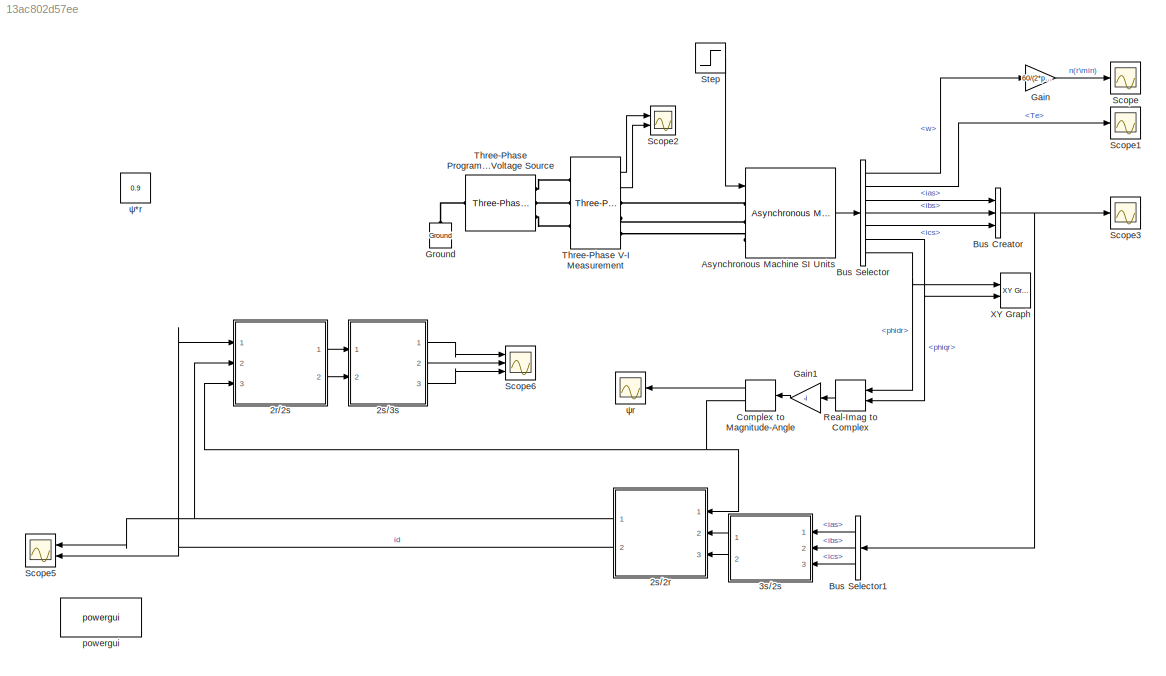
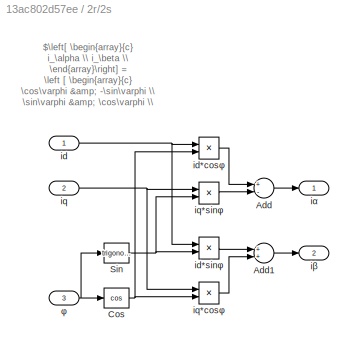
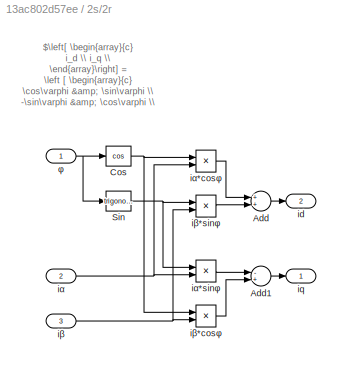
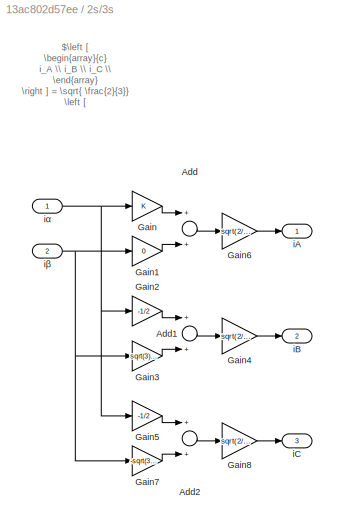
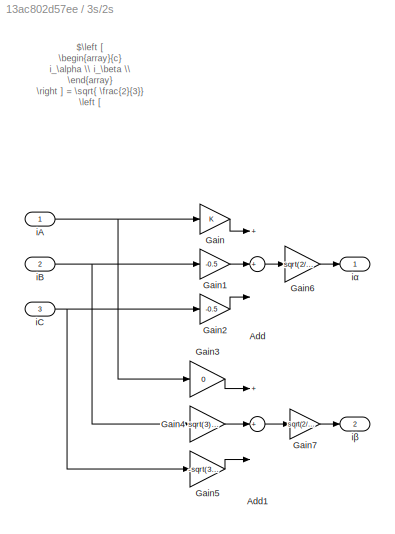
MODEL slx_13ac802d57ee
KIND model
CONFIG AbsTol = auto
CONFIG EnableMultiTasking = off
CONFIG FixedStep = auto
CONFIG MaxStep = auto
CONFIG MinStep = auto
CONFIG RelTol = 1e-3
CONFIG SampleTimeConstraint = Unconstrained
CONFIG Solver = ode23tb
CONFIG SolverName = ode23tb
CONFIG StartTime = 0.0
CONFIG StopTime = 1
BLOCK [SubSystem] 2r//2s
  Ports = [3, 2]
  RequestExecContextInheritance = off
BLOCK [Sum] 2r//2s/Add
  InputSameDT = off
  Inputs = +-
  OutDataTypeStr = Inherit: Inherit via internal rule
  Ports = [2, 1]
  SaturateOnIntegerOverflow = off
BLOCK [Sum] 2r//2s/Add1
  InputSameDT = off
  OutDataTypeStr = Inherit: Inherit via internal rule
  Ports = [2, 1]
  SaturateOnIntegerOverflow = off
BLOCK [Trigonometry] 2r//2s/Cos
  Operator = cos
  Ports = [1, 1]
BLOCK [Trigonometry] 2r//2s/Sin
  Ports = [1, 1]
BLOCK [Inport] 2r//2s/id
  IconDisplay = Port number
BLOCK [Product] 2r//2s/id*cosφ
  InputSameDT = off
  OutDataTypeStr = Inherit: Inherit via internal rule
  Ports = [2, 1]
  RndMeth = Floor
  SaturateOnIntegerOverflow = off
BLOCK [Product] 2r//2s/id*sinφ
  InputSameDT = off
  OutDataTypeStr = Inherit: Inherit via internal rule
  Ports = [2, 1]
  RndMeth = Floor
  SaturateOnIntegerOverflow = off
BLOCK [Inport] 2r//2s/iq
  IconDisplay = Port number
  Port = 2
BLOCK [Product] 2r//2s/iq*cosφ
  InputSameDT = off
  OutDataTypeStr = Inherit: Inherit via internal rule
  Ports = [2, 1]
  RndMeth = Floor
  SaturateOnIntegerOverflow = off
BLOCK [Product] 2r//2s/iq*sinφ
  InputSameDT = off
  OutDataTypeStr = Inherit: Inherit via internal rule
  Ports = [2, 1]
  RndMeth = Floor
  SaturateOnIntegerOverflow = off
BLOCK [Outport] 2r//2s/iα
  IconDisplay = Port number
BLOCK [Outport] 2r//2s/iβ
  IconDisplay = Port number
  Port = 2
BLOCK [Inport] 2r//2s/φ
  IconDisplay = Port number
  Port = 3
BLOCK [SubSystem] 2s//2r
  Ports = [3, 2]
  RequestExecContextInheritance = off
BLOCK [Sum] 2s//2r/Add
  InputSameDT = off
  OutDataTypeStr = Inherit: Inherit via internal rule
  Ports = [2, 1]
  SaturateOnIntegerOverflow = off
BLOCK [Sum] 2s//2r/Add1
  InputSameDT = off
  Inputs = -+
  OutDataTypeStr = Inherit: Inherit via internal rule
  Ports = [2, 1]
  SaturateOnIntegerOverflow = off
BLOCK [Trigonometry] 2s//2r/Cos
  Operator = cos
  Ports = [1, 1]
BLOCK [Trigonometry] 2s//2r/Sin
  Ports = [1, 1]
BLOCK [Outport] 2s//2r/id
  IconDisplay = Port number
  Port = 2
BLOCK [Outport] 2s//2r/iq
  IconDisplay = Port number
BLOCK [Inport] 2s//2r/iα
  IconDisplay = Port number
  Port = 2
BLOCK [Product] 2s//2r/iα*cosφ
  InputSameDT = off
  OutDataTypeStr = Inherit: Inherit via internal rule
  Ports = [2, 1]
  RndMeth = Floor
  SaturateOnIntegerOverflow = off
BLOCK [Product] 2s//2r/iα*sinφ
  InputSameDT = off
  OutDataTypeStr = Inherit: Inherit via internal rule
  Ports = [2, 1]
  RndMeth = Floor
  SaturateOnIntegerOverflow = off
BLOCK [Inport] 2s//2r/iβ
  IconDisplay = Port number
  Port = 3
BLOCK [Product] 2s//2r/iβ*cosφ
  InputSameDT = off
  OutDataTypeStr = Inherit: Inherit via internal rule
  Ports = [2, 1]
  RndMeth = Floor
  SaturateOnIntegerOverflow = off
BLOCK [Product] 2s//2r/iβ*sinφ
  InputSameDT = off
  OutDataTypeStr = Inherit: Inherit via internal rule
  Ports = [2, 1]
  RndMeth = Floor
  SaturateOnIntegerOverflow = off
BLOCK [Inport] 2s//2r/φ
  IconDisplay = Port number
BLOCK [SubSystem] 2s//3s
  Ports = [2, 3]
  RequestExecContextInheritance = off
BLOCK [Sum] 2s//3s/Add
  InputSameDT = off
  Inputs = 2
  OutDataTypeStr = Inherit: Inherit via internal rule
  Ports = [2, 1]
  SaturateOnIntegerOverflow = off
BLOCK [Sum] 2s//3s/Add1
  InputSameDT = off
  Inputs = 2
  OutDataTypeStr = Inherit: Inherit via internal rule
  Ports = [2, 1]
  SaturateOnIntegerOverflow = off
BLOCK [Sum] 2s//3s/Add2
  InputSameDT = off
  Inputs = 2
  OutDataTypeStr = Inherit: Inherit via internal rule
  Ports = [2, 1]
  SaturateOnIntegerOverflow = off
BLOCK [Gain] 2s//3s/Gain
  OutDataTypeStr = Inherit: Inherit via internal rule
  ParamDataTypeStr = Inherit: Inherit via internal rule
  SaturateOnIntegerOverflow = off
BLOCK [Gain] 2s//3s/Gain1
  Gain = 0
  OutDataTypeStr = Inherit: Inherit via internal rule
  ParamDataTypeStr = Inherit: Inherit via internal rule
  SaturateOnIntegerOverflow = off
BLOCK [Gain] 2s//3s/Gain2
  Gain = -1/2
  OutDataTypeStr = Inherit: Inherit via internal rule
  ParamDataTypeStr = Inherit: Inherit via internal rule
  SaturateOnIntegerOverflow = off
BLOCK [Gain] 2s//3s/Gain3
  Gain = sqrt(3)/2
  OutDataTypeStr = Inherit: Inherit via internal rule
  ParamDataTypeStr = Inherit: Inherit via internal rule
  SaturateOnIntegerOverflow = off
BLOCK [Gain] 2s//3s/Gain4
  Gain = sqrt(2/3)
  OutDataTypeStr = Inherit: Inherit via internal rule
  ParamDataTypeStr = Inherit: Inherit via internal rule
  SaturateOnIntegerOverflow = off
BLOCK [Gain] 2s//3s/Gain5
  Gain = -1/2
  OutDataTypeStr = Inherit: Inherit via internal rule
  ParamDataTypeStr = Inherit: Inherit via internal rule
  SaturateOnIntegerOverflow = off
BLOCK [Gain] 2s//3s/Gain6
  Gain = sqrt(2/3)
  OutDataTypeStr = Inherit: Inherit via internal rule
  ParamDataTypeStr = Inherit: Inherit via internal rule
  SaturateOnIntegerOverflow = off
BLOCK [Gain] 2s//3s/Gain7
  Gain = -sqrt(3)/2
  OutDataTypeStr = Inherit: Inherit via internal rule
  ParamDataTypeStr = Inherit: Inherit via internal rule
  SaturateOnIntegerOverflow = off
BLOCK [Gain] 2s//3s/Gain8
  Gain = sqrt(2/3)
  OutDataTypeStr = Inherit: Inherit via internal rule
  ParamDataTypeStr = Inherit: Inherit via internal rule
  SaturateOnIntegerOverflow = off
BLOCK [Outport] 2s//3s/iA
  IconDisplay = Port number
BLOCK [Outport] 2s//3s/iB
  IconDisplay = Port number
  Port = 2
BLOCK [Outport] 2s//3s/iC
  IconDisplay = Port number
  Port = 3
BLOCK [Inport] 2s//3s/iα
  IconDisplay = Port number
BLOCK [Inport] 2s//3s/iβ
  IconDisplay = Port number
  Port = 2
BLOCK [SubSystem] 3s//2s
  Ports = [3, 2]
  RequestExecContextInheritance = off
BLOCK [Sum] 3s//2s/Add
  InputSameDT = off
  Inputs = 3
  OutDataTypeStr = Inherit: Inherit via internal rule
  Ports = [3, 1]
  SaturateOnIntegerOverflow = off
BLOCK [Sum] 3s//2s/Add1
  InputSameDT = off
  Inputs = 3
  OutDataTypeStr = Inherit: Inherit via internal rule
  Ports = [3, 1]
  SaturateOnIntegerOverflow = off
BLOCK [Gain] 3s//2s/Gain
  OutDataTypeStr = Inherit: Inherit via internal rule
  ParamDataTypeStr = Inherit: Inherit via internal rule
  SaturateOnIntegerOverflow = off
BLOCK [Gain] 3s//2s/Gain1
  Gain = -0.5
  OutDataTypeStr = Inherit: Inherit via internal rule
  ParamDataTypeStr = Inherit: Inherit via internal rule
  SaturateOnIntegerOverflow = off
BLOCK [Gain] 3s//2s/Gain2
  Gain = -0.5
  OutDataTypeStr = Inherit: Inherit via internal rule
  ParamDataTypeStr = Inherit: Inherit via internal rule
  SaturateOnIntegerOverflow = off
BLOCK [Gain] 3s//2s/Gain3
  Gain = 0
  OutDataTypeStr = Inherit: Inherit via internal rule
  ParamDataTypeStr = Inherit: Inherit via internal rule
  SaturateOnIntegerOverflow = off
BLOCK [Gain] 3s//2s/Gain4
  Gain = sqrt(3)/2
  OutDataTypeStr = Inherit: Inherit via internal rule
  ParamDataTypeStr = Inherit: Inherit via internal rule
  SaturateOnIntegerOverflow = off
BLOCK [Gain] 3s//2s/Gain5
  Gain = -sqrt(3)/2
  OutDataTypeStr = Inherit: Inherit via internal rule
  ParamDataTypeStr = Inherit: Inherit via internal rule
  SaturateOnIntegerOverflow = off
BLOCK [Gain] 3s//2s/Gain6
  Gain = sqrt(2/3)
  OutDataTypeStr = Inherit: Inherit via internal rule
  ParamDataTypeStr = Inherit: Inherit via internal rule
  SaturateOnIntegerOverflow = off
BLOCK [Gain] 3s//2s/Gain7
  Gain = sqrt(2/3)
  OutDataTypeStr = Inherit: Inherit via internal rule
  ParamDataTypeStr = Inherit: Inherit via internal rule
  SaturateOnIntegerOverflow = off
BLOCK [Inport] 3s//2s/iA
  IconDisplay = Port number
BLOCK [Inport] 3s//2s/iB
  IconDisplay = Port number
  Port = 2
BLOCK [Inport] 3s//2s/iC
  IconDisplay = Port number
  Port = 3
BLOCK [Outport] 3s//2s/iα
  IconDisplay = Port number
BLOCK [Outport] 3s//2s/iβ
  IconDisplay = Port number
  Port = 2
BLOCK [Reference] Asynchronous Machine SI Units  REF=powerlib/Machines/Asynchronous Machine
SI Units
  Ports = [1, 1, 0, 0, 0, 3]
  SourceBlock = powerlib/Machines/Asynchronous Machine\nSI Units
  SourceProductBaseCode = PS
  SourceProductName = Simscape Electrical
  SourceType = Asynchronous Machine
BLOCK [BusCreator] Bus Creator
  DisplayOption = bar
  InheritFromInputs = on
  Inputs = 3
  Ports = [3, 1]
BLOCK [BusSelector] Bus Selector
  OutputAsBus = off
  OutputSignals = w,Te,ias,ibs,ics,phiqr,phidr
  Ports = [1, 7]
BLOCK [BusSelector] Bus Selector1
  OutputAsBus = off
  OutputSignals = ias,ibs,ics
  Ports = [1, 3]
BLOCK [ComplexToMagnitudeAngle] Complex to Magnitude-Angle
  Ports = [1, 2]
BLOCK [Gain] Gain
  Gain = 60/(2*pi)
  OutDataTypeStr = Inherit: Inherit via internal rule
  ParamDataTypeStr = Inherit: Inherit via internal rule
  SaturateOnIntegerOverflow = off
BLOCK [Gain] Gain1
  Gain = -i
  OutDataTypeStr = Inherit: Inherit via internal rule
  ParamDataTypeStr = Inherit: Inherit via internal rule
  SaturateOnIntegerOverflow = off
BLOCK [Reference] Ground  REF=powerlib/Elements/Ground
  Ports = [0, 0, 0, 0, 0, 1]
  SourceBlock = powerlib/Elements/Ground
  SourceProductBaseCode = PS
  SourceProductName = Simscape Electrical
  SourceType = Ground
BLOCK [RealImagToComplex] Real-Imag to Complex
  Ports = [2, 1]
BLOCK [Scope] Scope
  Floating = off
  NumInputPorts = 1
  Ports = [1]
  ScopeSpecificationString = Simulink.scopes.TimeScopeBlockCfg('CurrentConfiguration', extmgr.ConfigurationSet(extmgr.Configuration('Core','General UI',true,'FigureColor',[1 1 1]),extmgr.Configuration('Core','Source UI',true),extmgr.Configuration('Sources','WiredSimulink',true),extmgr.Configuration('Visuals','Time Domain',true,'SerializedDisplays',{struct('MinYLimReal','-187.85','MaxYLimReal','1690.65004','YLabelReal','','Min...<+1667ch>
BLOCK [Scope] Scope1
  Floating = off
  NumInputPorts = 1
  Ports = [1]
  ScopeSpecificationString = Simulink.scopes.TimeScopeBlockCfg('CurrentConfiguration', extmgr.ConfigurationSet(extmgr.Configuration('Core','General UI',true,'FigureColor',[1 1 1]),extmgr.Configuration('Core','Source UI',true),extmgr.Configuration('Sources','WiredSimulink',true,'DataLoggingVariableName','ScopeData2'),extmgr.Configuration('Visuals','Time Domain',true,'SerializedDisplays',{struct('MinYLimReal','-35.66398','MaxYL...<+1690ch>
BLOCK [Scope] Scope2
  Floating = off
  NumInputPorts = 2
  Ports = [2]
  ScopeSpecificationString = Simulink.scopes.TimeScopeBlockCfg('CurrentConfiguration', extmgr.ConfigurationSet(extmgr.Configuration('Core','General UI',true),extmgr.Configuration('Core','Source UI',true),extmgr.Configuration('Sources','WiredSimulink',true,'DataLoggingVariableName','ScopeData2'),extmgr.Configuration('Visuals','Time Domain',true,'SerializedDisplays',{struct('MinYLimReal','-387.83587','MaxYLimReal','387.83586','...<+2315ch>
BLOCK [Scope] Scope3
  Floating = off
  NumInputPorts = 1
  Ports = [1]
  ScopeSpecificationString = Simulink.scopes.TimeScopeBlockCfg('CurrentConfiguration', extmgr.ConfigurationSet(extmgr.Configuration('Core','General UI',true,'FigureColor',[1 1 1]),extmgr.Configuration('Core','Source UI',true),extmgr.Configuration('Sources','WiredSimulink',true,'DataLoggingVariableName','ScopeData1'),extmgr.Configuration('Visuals','Time Domain',true,'SerializedDisplays',{struct('MinYLimReal','-60.27575','MaxYL...<+1977ch>
BLOCK [Scope] Scope5
  Floating = off
  NumInputPorts = 2
  Ports = [2]
  ScopeSpecificationString = Simulink.scopes.TimeScopeBlockCfg('CurrentConfiguration', extmgr.ConfigurationSet(extmgr.Configuration('Core','General UI',true,'FigureColor',[1 1 1]),extmgr.Configuration('Core','Source UI',true),extmgr.Configuration('Sources','WiredSimulink',true,'DataLoggingVariableName','ScopeData2'),extmgr.Configuration('Visuals','Time Domain',true,'SerializedDisplays',{struct('MinYLimReal','-14.48212','MaxYL...<+1962ch>
BLOCK [Scope] Scope6
  Floating = off
  NumInputPorts = 3
  Ports = [3]
  ScopeSpecificationString = Simulink.scopes.TimeScopeBlockCfg('CurrentConfiguration', extmgr.ConfigurationSet(extmgr.Configuration('Core','General UI',true,'FigureColor',[1 1 1]),extmgr.Configuration('Core','Source UI',true),extmgr.Configuration('Sources','WiredSimulink',true,'DataLoggingVariableName','ScopeData1'),extmgr.Configuration('Visuals','Time Domain',true,'SerializedDisplays',{struct('MinYLimReal','-60.27575','MaxYL...<+1980ch>
BLOCK [Step] Step
  After = TN
  Time = 0.7
  VectorParams1D = off
  ZeroCross = off
BLOCK [Reference] Three-Phase Programmable Voltage Source  REF=powerlib/Electrical
Sources/Three-Phase
Programmable
Voltage Source
  Ports = [0, 0, 0, 0, 0, 1, 3]
  SourceBlock = powerlib/Electrical\nSources/Three-Phase\nProgrammable\nVoltage Source
  SourceProductBaseCode = PS
  SourceProductName = Simscape Electrical
  SourceType = Three-Phase Programmable Voltage Source
BLOCK [Reference] Three-Phase V-I Measurement  REF=powerlib/Measurements/Three-Phase
V-I Measurement
  Ports = [0, 2, 0, 0, 0, 3, 3]
  SourceBlock = powerlib/Measurements/Three-Phase\nV-I Measurement
  SourceProductBaseCode = PS
  SourceProductName = Simscape Electrical
  SourceType = Three-Phase VI Measurement
BLOCK [Reference] XY Graph  REF=simulink/Sinks/XY Graph
  Ports = [2]
  SourceBlock = simulink/Sinks/XY Graph
  SourceProductBaseCode = SL
  SourceProductName = Simulink
  SourceType = XY scope.
BLOCK [Reference] powergui  REF=powerlib/powergui
  Ports = []
  Priority = 1
  SourceBlock = powerlib/powergui
  SourceProductBaseCode = PS
  SourceProductName = Simscape Electrical
  SourceType = PSB option menu block
BLOCK [Constant] ψ*r
  Value = 0.9
BLOCK [Scope] ψr
  Floating = off
  NumInputPorts = 1
  Ports = [1]
  ScopeSpecificationString = Simulink.scopes.TimeScopeBlockCfg('CurrentConfiguration', extmgr.ConfigurationSet(extmgr.Configuration('Core','General UI',true),extmgr.Configuration('Core','Source UI',true),extmgr.Configuration('Sources','WiredSimulink',true,'DataLoggingVariableName','ScopeData1'),extmgr.Configuration('Visuals','Time Domain',true,'SerializedDisplays',{struct('MinYLimReal','-0.11878','MaxYLimReal','1.069','YLabel...<+1454ch>
ANNOTATION 2r//2s: $\left[ \begin{array}{c} i_\alpha \\ i_\beta \\ \end{array}\right] = \left [ \begin{array}{c} \cos\varphi & -\sin\varphi \\ \sin\varphi & \cos\varphi \\ \end{array}\right] \left[ \begin{array}{c} i_d \\ i_q \\ \end{array} \right]$
ANNOTATION 2s//2r: $\left[ \begin{array}{c} i_d \\ i_q \\ \end{array}\right] = \left [ \begin{array}{c} \cos\varphi & \sin\varphi \\ -\sin\varphi & \cos\varphi \\ \end{array}\right] \left[ \begin{array}{c} i_\alpha \\ i_\beta \\ \end{array} \right]$
ANNOTATION 2s//3s: $\left [ \begin{array}{c} i_A \\ i_B \\ i_C \\ \end{array} \right ] = \sqrt{ \frac{2}{3}} \left [ \begin{array}{c} 1 & 0 \\ -\frac{1}{2} & \frac{\sqrt{3}}{2} \\ -\frac{1}{2} & -\frac{\sqrt{3}}{2}\\ \end{array} \right] \left [ \begin{array}{c} i_\alpha \\ i_\beta \\ \end{array} \right ]$
ANNOTATION 3s//2s: $\left [ \begin{array}{c} i_\alpha \\ i_\beta \\ \end{array} \right ] = \sqrt{ \frac{2}{3}} \left [ \begin{array}{c} 1 & -\frac{1}{2} & -\frac{1}{2} \\ 0 & \frac{\sqrt{3}}{2} & -\frac{\sqrt{3}}{2}\\ \end{array} \right] \left [ \begin{array}{c} i_A \\ i_B \\ i_C \\ \end{array} \right ]$
LINE 2r//2s/Add1:1 -> 2r//2s/iβ:1
LINE 2r//2s/Add:1 -> 2r//2s/iα:1
NET 2r//2s/Cos:1 -> 2r//2s/id*cosφ:2, 2r//2s/iq*cosφ:2
NET 2r//2s/Sin:1 -> 2r//2s/id*sinφ:2, 2r//2s/iq*sinφ:2
LINE 2r//2s/id*cosφ:1 -> 2r//2s/Add:1
LINE 2r//2s/id*sinφ:1 -> 2r//2s/Add1:1
NET 2r//2s/id:1 -> 2r//2s/id*cosφ:1, 2r//2s/id*sinφ:1
LINE 2r//2s/iq*cosφ:1 -> 2r//2s/Add1:2
LINE 2r//2s/iq*sinφ:1 -> 2r//2s/Add:2
NET 2r//2s/iq:1 -> 2r//2s/iq*cosφ:1, 2r//2s/iq*sinφ:1
NET 2r//2s/φ:1 -> 2r//2s/Cos:1, 2r//2s/Sin:1
LINE 2r//2s:1 -> 2s//3s:1
LINE 2r//2s:2 -> 2s//3s:2
LINE 2s//2r/Add1:1 -> 2s//2r/iq:1
LINE 2s//2r/Add:1 -> 2s//2r/id:1
NET 2s//2r/Cos:1 -> 2s//2r/iα*cosφ:1, 2s//2r/iβ*cosφ:1
NET 2s//2r/Sin:1 -> 2s//2r/iα*sinφ:1, 2s//2r/iβ*sinφ:1
LINE 2s//2r/iα*cosφ:1 -> 2s//2r/Add:1
LINE 2s//2r/iα*sinφ:1 -> 2s//2r/Add1:1
NET 2s//2r/iα:1 -> 2s//2r/iα*cosφ:2, 2s//2r/iα*sinφ:2
LINE 2s//2r/iβ*cosφ:1 -> 2s//2r/Add1:2
LINE 2s//2r/iβ*sinφ:1 -> 2s//2r/Add:2
NET 2s//2r/iβ:1 -> 2s//2r/iβ*cosφ:2, 2s//2r/iβ*sinφ:2
NET 2s//2r/φ:1 -> 2s//2r/Cos:1, 2s//2r/Sin:1
NET 2s//2r:1 -> 2r//2s:2, Scope5:1
NET 2s//2r:2 -> 2r//2s:1, Scope5:2
LINE 2s//3s/Add1:1 -> 2s//3s/Gain4:1
LINE 2s//3s/Add2:1 -> 2s//3s/Gain8:1
LINE 2s//3s/Add:1 -> 2s//3s/Gain6:1
LINE 2s//3s/Gain1:1 -> 2s//3s/Add:2
LINE 2s//3s/Gain2:1 -> 2s//3s/Add1:1
LINE 2s//3s/Gain3:1 -> 2s//3s/Add1:2
LINE 2s//3s/Gain4:1 -> 2s//3s/iB:1
LINE 2s//3s/Gain5:1 -> 2s//3s/Add2:1
LINE 2s//3s/Gain6:1 -> 2s//3s/iA:1
LINE 2s//3s/Gain7:1 -> 2s//3s/Add2:2
LINE 2s//3s/Gain8:1 -> 2s//3s/iC:1
LINE 2s//3s/Gain:1 -> 2s//3s/Add:1
NET 2s//3s/iα:1 -> 2s//3s/Gain2:1, 2s//3s/Gain5:1, 2s//3s/Gain:1
NET 2s//3s/iβ:1 -> 2s//3s/Gain1:1, 2s//3s/Gain3:1, 2s//3s/Gain7:1
LINE 2s//3s:1 -> Scope6:1
LINE 2s//3s:2 -> Scope6:2
LINE 2s//3s:3 -> Scope6:3
LINE 3s//2s/Add1:1 -> 3s//2s/Gain7:1
LINE 3s//2s/Add:1 -> 3s//2s/Gain6:1
LINE 3s//2s/Gain1:1 -> 3s//2s/Add:2
LINE 3s//2s/Gain2:1 -> 3s//2s/Add:3
LINE 3s//2s/Gain3:1 -> 3s//2s/Add1:1
LINE 3s//2s/Gain4:1 -> 3s//2s/Add1:2
LINE 3s//2s/Gain5:1 -> 3s//2s/Add1:3
LINE 3s//2s/Gain6:1 -> 3s//2s/iα:1
LINE 3s//2s/Gain7:1 -> 3s//2s/iβ:1
LINE 3s//2s/Gain:1 -> 3s//2s/Add:1
NET 3s//2s/iA:1 -> 3s//2s/Gain3:1, 3s//2s/Gain:1
NET 3s//2s/iB:1 -> 3s//2s/Gain1:1, 3s//2s/Gain4:1
NET 3s//2s/iC:1 -> 3s//2s/Gain2:1, 3s//2s/Gain5:1
LINE 3s//2s:1 -> 2s//2r:2
LINE 3s//2s:2 -> 2s//2r:3
LINE Asynchronous Machine SI Units:1 -> Bus Selector:1
NET Bus Creator:1 -> Bus Selector1:1, Scope3:1
LINE Bus Selector1:1 -> 3s//2s:1
LINE Bus Selector1:2 -> 3s//2s:2
LINE Bus Selector1:3 -> 3s//2s:3
LINE Bus Selector:1 -> Gain:1
LINE Bus Selector:2 -> Scope1:1
LINE Bus Selector:3 -> Bus Creator:1
LINE Bus Selector:4 -> Bus Creator:2
LINE Bus Selector:5 -> Bus Creator:3
NET Bus Selector:6 -> Real-Imag to Complex:2, XY Graph:2
NET Bus Selector:7 -> Real-Imag to Complex:1, XY Graph:1
LINE Complex to Magnitude-Angle:1 -> ψr:1
NET Complex to Magnitude-Angle:2 -> 2r//2s:3, 2s//2r:1
LINE Gain1:1 -> Complex to Magnitude-Angle:1
LINE Gain:1 -> Scope:1
LINE Real-Imag to Complex:1 -> Gain1:1
LINE Step:1 -> Asynchronous Machine SI Units:1
LINE Three-Phase V-I Measurement:1 -> Scope2:1
LINE Three-Phase V-I Measurement:2 -> Scope2:2
PLINE Asynchronous Machine SI Units:LConn1 -- Three-Phase V-I Measurement:RConn1
PLINE Asynchronous Machine SI Units:LConn2 -- Three-Phase V-I Measurement:RConn2
PLINE Asynchronous Machine SI Units:LConn3 -- Three-Phase V-I Measurement:RConn3
PLINE Ground:LConn1 -- Three-Phase Programmable Voltage Source:LConn1
PLINE Three-Phase Programmable Voltage Source:RConn1 -- Three-Phase V-I Measurement:LConn1
PLINE Three-Phase Programmable Voltage Source:RConn2 -- Three-Phase V-I Measurement:LConn2
PLINE Three-Phase Programmable Voltage Source:RConn3 -- Three-Phase V-I Measurement:LConn3
note: NET lines group one-source signal fan-out (src -> all destinations, sorted); 1:1 wires keep LINE
